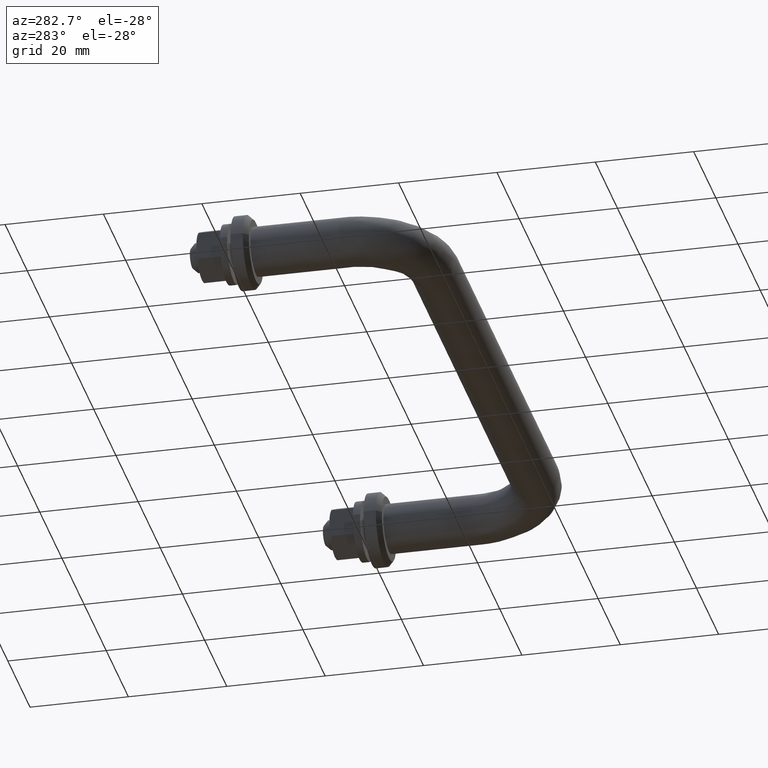
[diagram: clean part render]
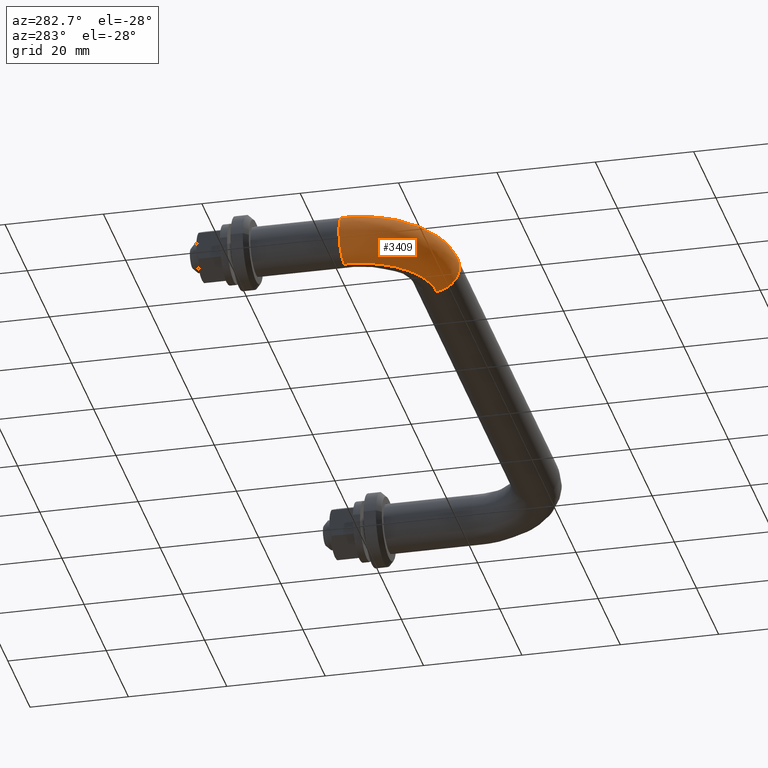
[diagram: same view with one face highlighted and labeled with its STEP entity id]
A machine part, auxiliary view. The second image highlights one B-rep face of the part: STEP entity #3409.
In plain terms, the highlighted face is a freeform B-spline surface patch.
Its self-contained STEP definition (entity closure, byte-faithful):
#2828=CARTESIAN_POINT('',(15.0,-38.040222708103272,3.969514565426509));
#2829=VERTEX_POINT('',#2828);
#2835=CARTESIAN_POINT('',(15.0,-40.0,0.0));
#2836=VERTEX_POINT('',#2835);
#2837=CARTESIAN_POINT('',(15.0,-40.0,0.0));
#2838=CARTESIAN_POINT('',(15.000000000000004,-40.000000000000007,2.468535207006407));
#2839=CARTESIAN_POINT('',(14.999999999999998,-38.040222708103265,3.969514565426509));
#2847=(BOUNDED_CURVE()B_SPLINE_CURVE(2,(#2837,#2838,#2839),.UNSPECIFIED.,.F.,.U.)B_SPLINE_CURVE_WITH_KNOTS((3,3),(0.500000000000000,0.644916377221878),.UNSPECIFIED.)CURVE()GEOMETRIC_REPRESENTATION_ITEM()RATIONAL_B_SPLINE_CURVE((1.0,0.830219903266799,0.857271138877241))REPRESENTATION_ITEM(''));
#2848=EDGE_CURVE('',#2836,#2829,#2847,.T.);
#2850=CARTESIAN_POINT('',(14.999999999844659,-35.348666259216770,-4.987828369108522));
#2851=VERTEX_POINT('',#2850);
#2852=CARTESIAN_POINT('',(14.999999999844661,-35.348666259216778,-4.987828369108522));
#2853=CARTESIAN_POINT('',(15.000000000000007,-39.999999999999993,-4.662684233822515));
#2854=CARTESIAN_POINT('',(15.0,-40.0,0.0));
#2862=(BOUNDED_CURVE()B_SPLINE_CURVE(2,(#2852,#2853,#2854),.UNSPECIFIED.,.F.,.U.)B_SPLINE_CURVE_WITH_KNOTS((3,3),(0.262166313557243,0.500000000000000),.UNSPECIFIED.)CURVE()GEOMETRIC_REPRESENTATION_ITEM()RATIONAL_B_SPLINE_CURVE((0.972879876191681,0.721360504142046,1.0))REPRESENTATION_ITEM(''));
#2863=EDGE_CURVE('',#2851,#2836,#2862,.T.);
#2997=CARTESIAN_POINT('',(14.999999999465739,-34.937169799687780,4.999605221007827));
#2998=VERTEX_POINT('',#2997);
#3012=CARTESIAN_POINT('',(15.000000000000004,-38.040222708103272,3.969514565426509));
#3013=CARTESIAN_POINT('',(15.0,-36.694753203157383,5.0));
#3014=CARTESIAN_POINT('',(15.0,-35.0,5.0));
#3015=CARTESIAN_POINT('',(14.999999999999998,-34.968583659144976,5.0));
#3016=CARTESIAN_POINT('',(14.999999999465739,-34.937169799687780,4.999605221007827));
#3024=(BOUNDED_CURVE()B_SPLINE_CURVE(2,(#3012,#3013,#3014,#3015,#3016),.UNSPECIFIED.,.F.,.U.)B_SPLINE_CURVE_WITH_KNOTS((3,2,3),(0.644916377221878,0.750000000000000,0.752215704141270),.UNSPECIFIED.)CURVE()GEOMETRIC_REPRESENTATION_ITEM()RATIONAL_B_SPLINE_CURVE((0.857271138877242,0.876886877919749,1.0,0.997404141128501,0.994854295499015))REPRESENTATION_ITEM(''));
#3025=EDGE_CURVE('',#2829,#2998,#3024,.T.);
#3053=CARTESIAN_POINT('',(0.062830199724828,-19.999999999986880,4.999605221015209));
#3054=VERTEX_POINT('',#3053);
#3118=CARTESIAN_POINT('',(-0.348666262618661,-20.000000000931621,-4.987828368870718));
#3119=VERTEX_POINT('',#3118);
#3135=CARTESIAN_POINT('',(-4.999999999999997,-20.0,0.0));
#3136=VERTEX_POINT('',#3135);
#3137=CARTESIAN_POINT('',(-0.348666262618661,-20.000000000931625,-4.987828368870718));
#3138=CARTESIAN_POINT('',(-4.999999999999997,-20.0,-4.662684227446723));
#3139=CARTESIAN_POINT('',(-4.999999999999997,-20.0,0.0));
#3147=(BOUNDED_CURVE()B_SPLINE_CURVE(2,(#3137,#3138,#3139),.UNSPECIFIED.,.F.,.U.)B_SPLINE_CURVE_WITH_KNOTS((3,3),(0.262166313791840,0.500000000000000),.UNSPECIFIED.)CURVE()GEOMETRIC_REPRESENTATION_ITEM()RATIONAL_B_SPLINE_CURVE((0.972879875695487,0.721360504416894,1.0))REPRESENTATION_ITEM(''));
#3148=EDGE_CURVE('',#3119,#3136,#3147,.T.);
#3150=CARTESIAN_POINT('',(-4.999999999999997,-20.0,0.0));
#3151=CARTESIAN_POINT('',(-4.999999999999997,-19.999999999999996,5.000000000000001));
#3152=CARTESIAN_POINT('',(2.449213E-015,-20.0,5.0));
#3153=CARTESIAN_POINT('',(0.031416340267555,-19.999999999999996,5.0));
#3154=CARTESIAN_POINT('',(0.062830199724828,-19.999999999986876,4.999605221015209));
#3162=(BOUNDED_CURVE()B_SPLINE_CURVE(2,(#3150,#3151,#3152,#3153,#3154),.UNSPECIFIED.,.F.,.U.)B_SPLINE_CURVE_WITH_KNOTS((3,2,3),(0.500000000000000,0.750000000000000,0.752215704099945),.UNSPECIFIED.)CURVE()GEOMETRIC_REPRESENTATION_ITEM()RATIONAL_B_SPLINE_CURVE((1.0,0.707106781186548,1.0,0.997404141176916,0.994854295594129))REPRESENTATION_ITEM(''));
#3163=EDGE_CURVE('',#3136,#3054,#3162,.T.);
#3347=CARTESIAN_POINT('',(-0.239729334533082,-18.943421411071519,-4.992886178809674));
#3348=CARTESIAN_POINT('',(-1.454646900098640,-36.466978160187267,-4.992886178809673));
#3349=CARTESIAN_POINT('',(16.067994802995671,-35.238933545533442,-4.992886178809672));
#3350=CARTESIAN_POINT('',(-0.275719796126336,-18.940926173112210,-4.990364283218417));
#3351=CARTESIAN_POINT('',(-1.493506536269909,-36.505866918118706,-4.990364283218417));
#3352=CARTESIAN_POINT('',(16.070517001723424,-35.274922127774857,-4.990364283218417));
#3353=CARTESIAN_POINT('',(-5.010903354822970,-18.612633363381782,-4.658564189198486));
#3354=CARTESIAN_POINT('',(-6.606180899124185,-41.622372765033319,-4.658564189198486));
#3355=CARTESIAN_POINT('',(16.402356978727411,-40.009858424403731,-4.658564189198487));
#3356=CARTESIAN_POINT('',(-4.951711528692135,-18.616737164358593,0.062830199416762));
#3357=CARTESIAN_POINT('',(-6.542270275977630,-41.558414246692124,0.062830199416762));
#3358=CARTESIAN_POINT('',(16.398208836637764,-39.950669689154829,0.062830199416762));
#3359=CARTESIAN_POINT('',(-4.889031790757309,-18.621082784127022,5.062435420435840));
#3360=CARTESIAN_POINT('',(-6.474593683246342,-41.490686936514749,5.062435420435841));
#3361=CARTESIAN_POINT('',(16.393816262931360,-39.887993224233902,5.062435420435841));
#3362=CARTESIAN_POINT('',(0.134052641361194,-18.969335915455950,4.999158626061839));
#3363=CARTESIAN_POINT('',(-1.051066869512099,-36.063095683103164,4.999158626061841));
#3364=CARTESIAN_POINT('',(16.041800295275376,-34.865171087806331,4.999158626061839));
#3365=CARTESIAN_POINT('',(0.169296423057803,-18.971779385698497,4.998714653128970));
#3366=CARTESIAN_POINT('',(-1.013013438869616,-36.025013734878158,4.998714653128969));
#3367=CARTESIAN_POINT('',(16.039330423608781,-34.829929146471393,4.998714653128969));
#3375=(BOUNDED_SURFACE()B_SPLINE_SURFACE(2,2,((#3347,#3350,#3353,#3356,#3359,#3362,#3365),(#3348,#3351,#3354,#3357,#3360,#3363,#3366),(#3349,#3352,#3355,#3358,#3361,#3364,#3367)),.UNSPECIFIED.,.F.,.F.,.U.)B_SPLINE_SURFACE_WITH_KNOTS((3,3),(3,1,2,1,3),(0.0,36.446470651290312),(0.0,0.083525413414414,8.036425810977834,16.320697058439730,16.404217970411288),.UNSPECIFIED.)GEOMETRIC_REPRESENTATION_ITEM()RATIONAL_B_SPLINE_SURFACE(((0.905766877556390,0.903263357137125,0.662386295974072,0.921487970695580,0.651590392860676,0.924209041887762,0.926930113079943),(0.591093694470129,0.589459924048101,0.432266152092013,0.601353110281207,0.425220862167464,0.603128851991085,0.604904593700963),(0.895760220876344,0.893284358643692,0.655068439230114,0.911307631818076,0.644391806205615,0.913998641384141,0.916689650950205)))REPRESENTATION_ITEM('')SURFACE());
#3376=ORIENTED_EDGE('',*,*,#2863,.T.);
#3377=ORIENTED_EDGE('',*,*,#2848,.T.);
#3378=ORIENTED_EDGE('',*,*,#3025,.T.);
#3379=CARTESIAN_POINT('',(0.062830199724828,-19.999999999986880,4.999605221015210));
#3380=CARTESIAN_POINT('',(0.062830199390521,-34.937169799514692,4.999605221019078));
#3381=CARTESIAN_POINT('',(14.999999999465739,-34.937169799687780,4.999605221007827));
#3389=(BOUNDED_CURVE()B_SPLINE_CURVE(2,(#3379,#3380,#3381),.UNSPECIFIED.,.F.,.U.)B_SPLINE_CURVE_WITH_KNOTS((3,3),(-1.747842683671074,-0.278273131020276),.UNSPECIFIED.)CURVE()GEOMETRIC_REPRESENTATION_ITEM()RATIONAL_B_SPLINE_CURVE((0.893710737964747,0.628668022902519,0.884455039429489))REPRESENTATION_ITEM(''));
#3390=EDGE_CURVE('',#3054,#2998,#3389,.T.);
#3391=ORIENTED_EDGE('',*,*,#3390,.F.);
#3392=ORIENTED_EDGE('',*,*,#3163,.F.);
#3393=ORIENTED_EDGE('',*,*,#3148,.F.);
#3394=CARTESIAN_POINT('',(-0.348666262618661,-20.000000000931617,-4.987828368870718));
#3395=CARTESIAN_POINT('',(-0.348666256013963,-35.348666257566499,-4.987828369202160));
#3396=CARTESIAN_POINT('',(14.999999999844665,-35.348666259216763,-4.987828369108522));
#3404=(BOUNDED_CURVE()B_SPLINE_CURVE(2,(#3394,#3395,#3396),.UNSPECIFIED.,.F.,.U.)B_SPLINE_CURVE_WITH_KNOTS((3,3),(-1.747842683542434,-0.278273130967251),.UNSPECIFIED.)CURVE()GEOMETRIC_REPRESENTATION_ITEM()RATIONAL_B_SPLINE_CURVE((0.873607430548076,0.614526639174155,0.864559931602852))REPRESENTATION_ITEM(''));
#3405=EDGE_CURVE('',#3119,#2851,#3404,.T.);
#3406=ORIENTED_EDGE('',*,*,#3405,.T.);
#3407=EDGE_LOOP('',(#3376,#3377,#3378,#3391,#3392,#3393,#3406));
#3408=FACE_OUTER_BOUND('',#3407,.T.);
#3409=ADVANCED_FACE('',(#3408),#3375,.T.);